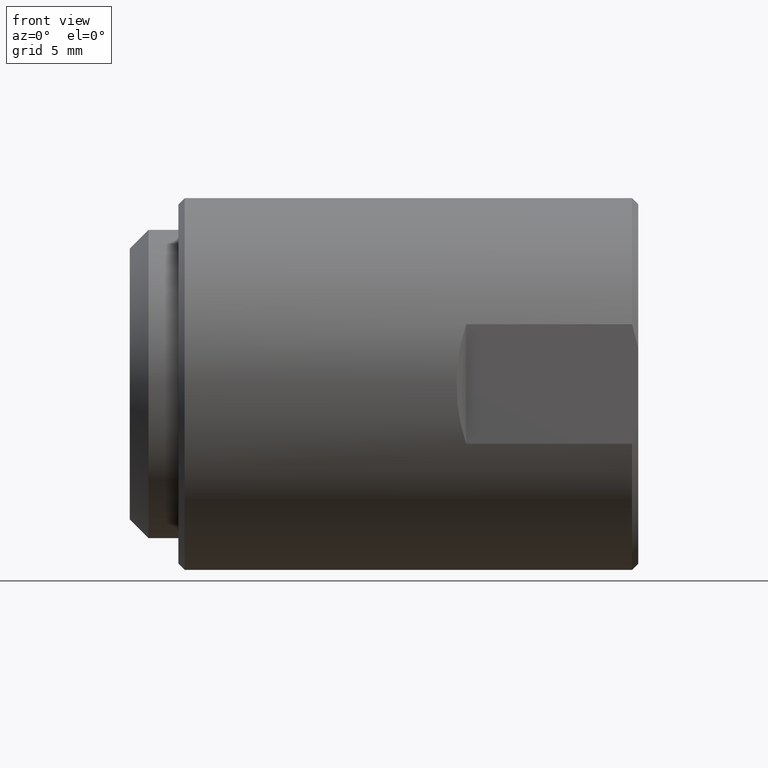
[diagram: clean part render]
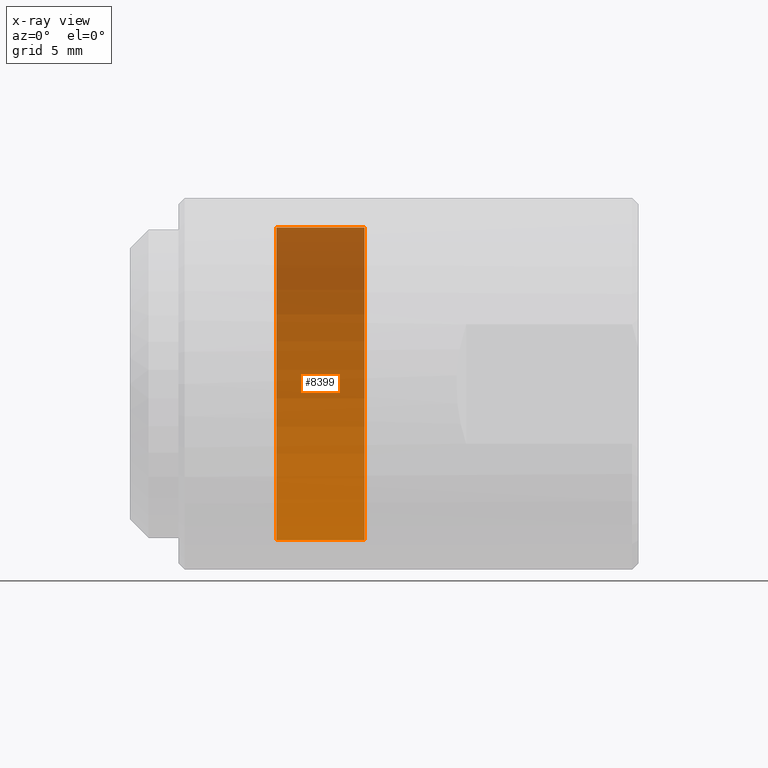
[diagram: x-ray — body ghosted, one internal face saturated and labeled with its STEP entity id]
A machine part, front view, then the same camera in x-ray: the body is ghosted and one INTERNAL B-rep face — a face not visible from any outside direction — is saturated and labeled: STEP entity #8399.
In plain terms, the highlighted cylindrical surface (partial cylindrical patch) has radius 12.6873 mm, axis along (-1, -0, -0).
Its self-contained STEP definition (entity closure, byte-faithful):
#208 = CARTESIAN_POINT ( 'NONE',  ( 0.09400000000000001410, 6.117110761741028667E-17, -0.4994999999999999440 ) ) ;
#574 = CARTESIAN_POINT ( 'NONE',  ( 0.09400000000000001410, 0.0000000000000000000, 0.4994999999999999440 ) ) ;
#917 = AXIS2_PLACEMENT_3D ( 'NONE', #2499, #6212, #5116 ) ;
#1573 = ORIENTED_EDGE ( 'NONE', *, *, #5196, .F. ) ;
#1939 = DIRECTION ( 'NONE',  ( 0.0000000000000000000, 0.0000000000000000000, 1.000000000000000000 ) ) ;
#2430 = CARTESIAN_POINT ( 'NONE',  ( 0.0000000000000000000, 0.0000000000000000000, 0.4994999999999999440 ) ) ;
#2499 = CARTESIAN_POINT ( 'NONE',  ( 0.3750000000000000555, 0.0000000000000000000, 0.0000000000000000000 ) ) ;
#2950 = EDGE_CURVE ( 'NONE', #3404, #8701, #4022, .T. ) ;
#2979 = EDGE_LOOP ( 'NONE', ( #1573, #8028, #3893, #8425 ) ) ;
#3404 = VERTEX_POINT ( 'NONE', #9994 ) ;
#3595 = DIRECTION ( 'NONE',  ( -1.000000000000000000, -0.0000000000000000000, -0.0000000000000000000 ) ) ;
#3603 = CARTESIAN_POINT ( 'NONE',  ( 0.3750000000000000555, 6.117110761741029900E-17, -0.4995000000000001106 ) ) ;
#3886 = DIRECTION ( 'NONE',  ( -1.000000000000000000, -0.0000000000000000000, -0.0000000000000000000 ) ) ;
#3893 = ORIENTED_EDGE ( 'NONE', *, *, #2950, .T. ) ;
#3927 = VERTEX_POINT ( 'NONE', #208 ) ;
#4022 = LINE ( 'NONE', #2430, #5320 ) ;
#4634 = LINE ( 'NONE', #11888, #7545 ) ;
#4886 = EDGE_CURVE ( 'NONE', #3404, #8096, #6172, .T. ) ;
#5116 = DIRECTION ( 'NONE',  ( 0.0000000000000000000, 0.0000000000000000000, 1.000000000000000000 ) ) ;
#5196 = EDGE_CURVE ( 'NONE', #8096, #3927, #4634, .T. ) ;
#5320 = VECTOR ( 'NONE', #6142, 39.37007874015748143 ) ;
#6142 = DIRECTION ( 'NONE',  ( -1.000000000000000000, -0.0000000000000000000, -0.0000000000000000000 ) ) ;
#6172 = CIRCLE ( 'NONE', #917, 0.4994999999999999996 ) ;
#6212 = DIRECTION ( 'NONE',  ( -1.000000000000000000, -0.0000000000000000000, -0.0000000000000000000 ) ) ;
#6507 = DIRECTION ( 'NONE',  ( -1.000000000000000000, -0.0000000000000000000, -0.0000000000000000000 ) ) ;
#6676 = DIRECTION ( 'NONE',  ( 0.0000000000000000000, 0.0000000000000000000, 1.000000000000000000 ) ) ;
#7429 = CARTESIAN_POINT ( 'NONE',  ( 0.09400000000000001410, 0.0000000000000000000, 0.0000000000000000000 ) ) ;
#7545 = VECTOR ( 'NONE', #3595, 39.37007874015748143 ) ;
#7601 = CARTESIAN_POINT ( 'NONE',  ( 0.0000000000000000000, 0.0000000000000000000, 0.0000000000000000000 ) ) ;
#8028 = ORIENTED_EDGE ( 'NONE', *, *, #4886, .F. ) ;
#8096 = VERTEX_POINT ( 'NONE', #3603 ) ;
#8399 = ADVANCED_FACE ( 'NONE', ( #9254 ), #11369, .F. ) ;
#8425 = ORIENTED_EDGE ( 'NONE', *, *, #10781, .T. ) ;
#8701 = VERTEX_POINT ( 'NONE', #574 ) ;
#9140 = CIRCLE ( 'NONE', #10677, 0.4994999999999999440 ) ;
#9254 = FACE_OUTER_BOUND ( 'NONE', #2979, .T. ) ;
#9994 = CARTESIAN_POINT ( 'NONE',  ( 0.3750000000000000555, 0.0000000000000000000, 0.4994999999999999996 ) ) ;
#10293 = AXIS2_PLACEMENT_3D ( 'NONE', #7601, #3886, #6676 ) ;
#10677 = AXIS2_PLACEMENT_3D ( 'NONE', #7429, #6507, #1939 ) ;
#10781 = EDGE_CURVE ( 'NONE', #8701, #3927, #9140, .T. ) ;
#11369 = CYLINDRICAL_SURFACE ( 'NONE', #10293, 0.4994999999999999440 ) ;
#11888 = CARTESIAN_POINT ( 'NONE',  ( 0.0000000000000000000, 6.117110761741028667E-17, -0.4994999999999999440 ) ) ;